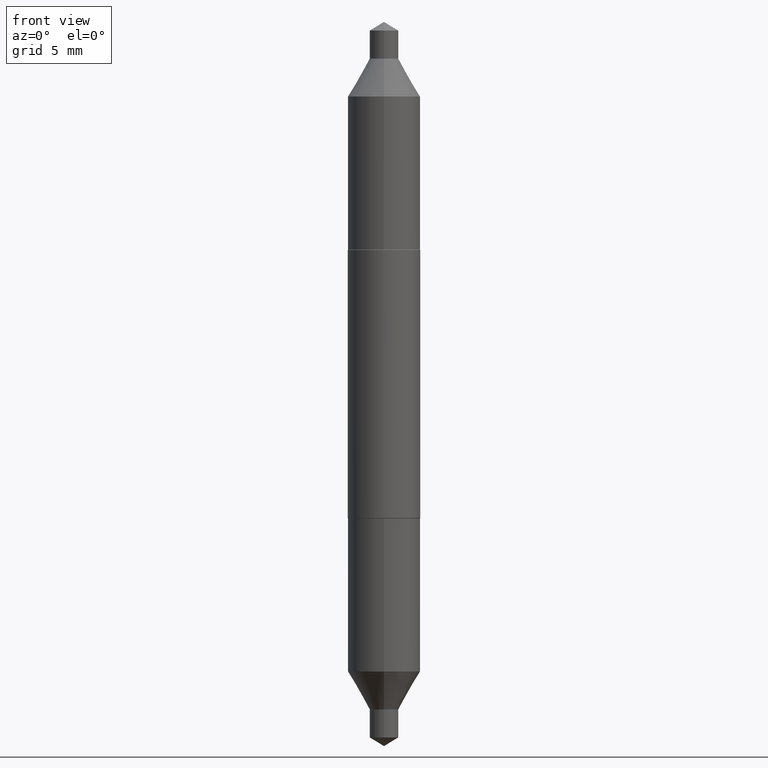
[diagram: clean part render]
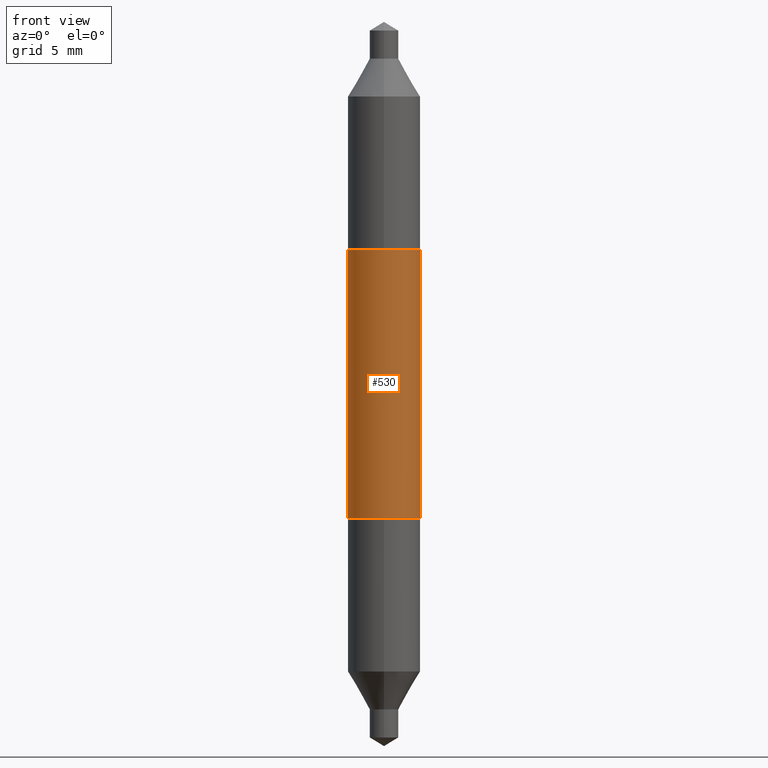
[diagram: same view with one face highlighted and labeled with its STEP entity id]
A machine part, front view. The second image highlights one B-rep face of the part: STEP entity #530.
In plain terms, the highlighted cylindrical surface (edge-blend (fillet) strip) has radius 1.5748 mm, axis along (-0, 0, 1).
Its self-contained STEP definition (entity closure, byte-faithful):
#2 = FACE_OUTER_BOUND ( 'NONE', #518, .T. ) ;
#22 = CARTESIAN_POINT ( 'NONE',  ( 0.06200000000000002037, -1.234238653281050355E-15, -0.2294999999999999263 ) ) ;
#81 = EDGE_CURVE ( 'NONE', #130, #155, #231, .T. ) ;
#108 = CARTESIAN_POINT ( 'NONE',  ( -0.06200000000000003425, 4.405364961712622107E-16, 0.2294999999999999263 ) ) ;
#120 = CARTESIAN_POINT ( 'NONE',  ( -0.06200000000000002037, -3.607584710932394325E-16, -0.2294999999999999263 ) ) ;
#130 = VERTEX_POINT ( 'NONE', #120 ) ;
#155 = VERTEX_POINT ( 'NONE', #108 ) ;
#159 = CARTESIAN_POINT ( 'NONE',  ( 0.06200000000000002037, 3.683512812479530302E-16, 0.2294999999999999263 ) ) ;
#163 = CYLINDRICAL_SURFACE ( 'NONE', #489, 0.06200000000000001343 ) ;
#167 = CARTESIAN_POINT ( 'NONE',  ( 0.000000000000000000, 0.000000000000000000, 0.000000000000000000 ) ) ;
#168 = CIRCLE ( 'NONE', #546, 0.06200000000000002037 ) ;
#172 = VERTEX_POINT ( 'NONE', #22 ) ;
#222 = DIRECTION ( 'NONE',  ( -2.445468806185136597E-29, 3.491481338843145583E-15, 1.000000000000000000 ) ) ;
#227 = CARTESIAN_POINT ( 'NONE',  ( -0.06200000000000001343, 4.405364961712622107E-16, -3.049739755958042274E-30 ) ) ;
#231 = LINE ( 'NONE', #227, #569 ) ;
#247 = DIRECTION ( 'NONE',  ( -2.445468806185136597E-29, 3.491481338843145583E-15, 1.000000000000000000 ) ) ;
#257 = CARTESIAN_POINT ( 'NONE',  ( 0.06200000000000001343, -4.329436860165486130E-16, 3.023229600993481018E-30 ) ) ;
#260 = AXIS2_PLACEMENT_3D ( 'NONE', #356, #302, #513 ) ;
#266 = ORIENTED_EDGE ( 'NONE', *, *, #448, .T. ) ;
#302 = DIRECTION ( 'NONE',  ( -2.445468806185136597E-29, 3.491481338843145583E-15, 1.000000000000000000 ) ) ;
#343 = EDGE_CURVE ( 'NONE', #155, #517, #168, .T. ) ;
#356 = CARTESIAN_POINT ( 'NONE',  ( 5.612350910194886774E-30, -8.012949672645016925E-16, -0.2294999999999999263 ) ) ;
#366 = DIRECTION ( 'NONE',  ( -2.445468806185136877E-29, 3.491481338843145188E-15, 1.000000000000000000 ) ) ;
#402 = VECTOR ( 'NONE', #366, 39.37007874015748143 ) ;
#432 = DIRECTION ( 'NONE',  ( -2.445468806185136877E-29, 3.491481338843145188E-15, 1.000000000000000000 ) ) ;
#448 = EDGE_CURVE ( 'NONE', #172, #517, #520, .T. ) ;
#480 = DIRECTION ( 'NONE',  ( 1.000000000000000000, -6.982962677686266711E-15, 4.876176775795935793E-29 ) ) ;
#489 = AXIS2_PLACEMENT_3D ( 'NONE', #167, #222, #480 ) ;
#498 = EDGE_CURVE ( 'NONE', #130, #172, #525, .T. ) ;
#511 = ORIENTED_EDGE ( 'NONE', *, *, #81, .F. ) ;
#513 = DIRECTION ( 'NONE',  ( 1.000000000000000000, -6.982962677686265922E-15, 0.000000000000000000 ) ) ;
#517 = VERTEX_POINT ( 'NONE', #159 ) ;
#518 = EDGE_LOOP ( 'NONE', ( #511, #529, #266, #687 ) ) ;
#520 = LINE ( 'NONE', #257, #402 ) ;
#525 = CIRCLE ( 'NONE', #260, 0.06200000000000002037 ) ;
#529 = ORIENTED_EDGE ( 'NONE', *, *, #498, .T. ) ;
#530 = ADVANCED_FACE ( 'NONE', ( #2 ), #163, .T. ) ;
#546 = AXIS2_PLACEMENT_3D ( 'NONE', #691, #247, #629 ) ;
#569 = VECTOR ( 'NONE', #432, 39.37007874015748143 ) ;
#629 = DIRECTION ( 'NONE',  ( 1.000000000000000000, -6.982962677686267499E-15, 0.000000000000000000 ) ) ;
#687 = ORIENTED_EDGE ( 'NONE', *, *, #343, .F. ) ;
#691 = CARTESIAN_POINT ( 'NONE',  ( -5.612350910194886774E-30, 8.012949672645016925E-16, 0.2294999999999999263 ) ) ;